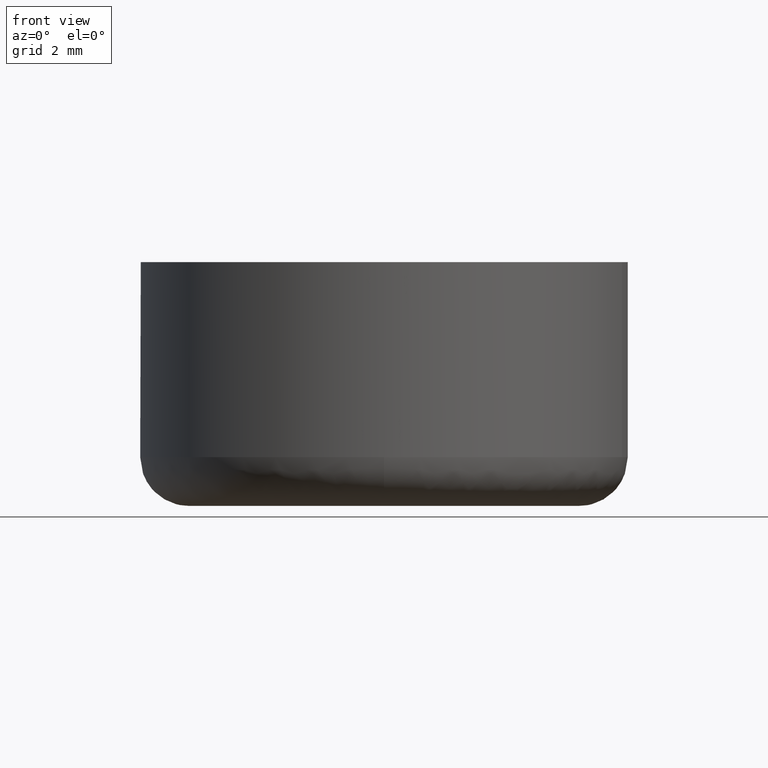
[diagram: clean part render]
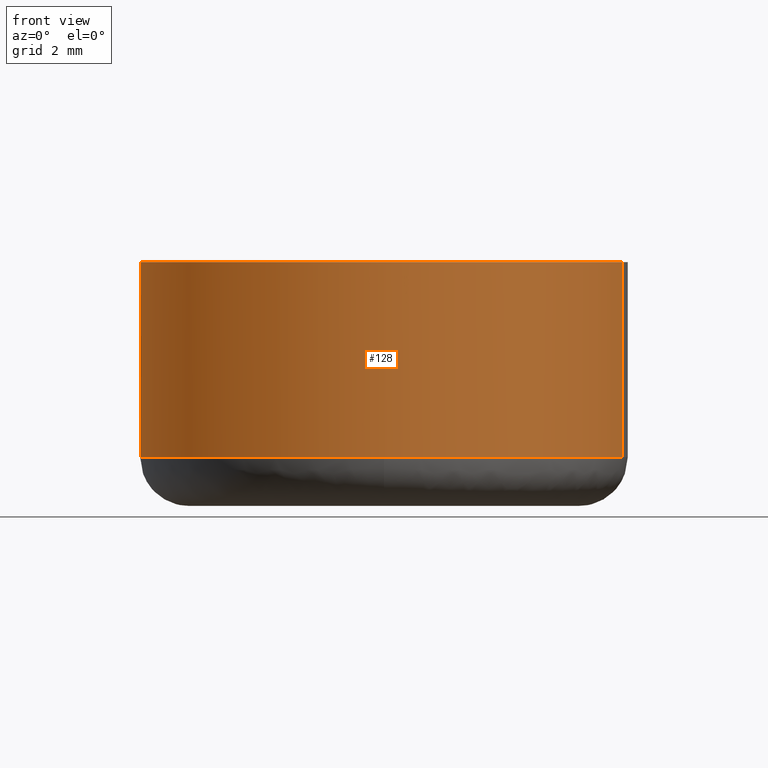
[diagram: same view with one face highlighted and labeled with its STEP entity id]
A machine part, front view. The second image highlights one B-rep face of the part: STEP entity #128.
In plain terms, the highlighted cylindrical surface (partial cylindrical patch) has radius 5 mm, axis along (-0, 0, 1).
Its self-contained STEP definition (entity closure, byte-faithful):
#128=ADVANCED_FACE('',(#299),#298,.T.);
#298=CYLINDRICAL_SURFACE('',#427,5.00000223932E+000);
#299=FACE_OUTER_BOUND('',#428,.T.);
#424=CARTESIAN_POINT('',(-1.82499951851E-006,2.10261817881E-006,5.00000000000E+000));
#425=DIRECTION('',(-3.91191233359E-016,2.85891110639E-016,1.00000000000E+000));
#426=DIRECTION('',(-9.75968852868E-001,2.17910069136E-001,-4.44089010958E-016));
#427=AXIS2_PLACEMENT_3D('',#424,#425,#426);
#428=EDGE_LOOP('',(#572,#573,#574,#575,#576,#577,#578));
#572=ORIENTED_EDGE('',*,*,#637,.T.);
#573=ORIENTED_EDGE('',*,*,#648,.F.);
#574=ORIENTED_EDGE('',*,*,#649,.F.);
#575=ORIENTED_EDGE('',*,*,#650,.F.);
#576=ORIENTED_EDGE('',*,*,#651,.F.);
#577=ORIENTED_EDGE('',*,*,#652,.F.);
#578=ORIENTED_EDGE('',*,*,#653,.T.);
#637=EDGE_CURVE('',#902,#894,#903,.T.);
#648=EDGE_CURVE('',#972,#894,#973,.T.);
#649=EDGE_CURVE('',#979,#972,#980,.T.);
#650=EDGE_CURVE('',#986,#979,#987,.T.);
#651=EDGE_CURVE('',#993,#986,#994,.T.);
#652=EDGE_CURVE('',#1000,#993,#1001,.T.);
#653=EDGE_CURVE('',#1000,#902,#1007,.T.);
#894=VERTEX_POINT('',#1210);
#902=VERTEX_POINT('',#1216);
#903=CIRCLE('',#1220,5.00000000000E+000);
#972=VERTEX_POINT('',#1252);
#973=(BOUNDED_CURVE() B_SPLINE_CURVE(1,(#1253,#1254),.UNSPECIFIED.,.F.,.F.) B_SPLINE_CURVE_WITH_KNOTS((2,2),(8.33333358172E-002,9.16666671238E-001),.UNSPECIFIED.) CURVE() GEOMETRIC_REPRESENTATION_ITEM() RATIONAL_B_SPLINE_CURVE((1.00000000000E+000,1.00000000000E+000)) REPRESENTATION_ITEM('') );
#979=VERTEX_POINT('',#1255);
#980=CIRCLE('',#1259,5.00000000000E+000);
#986=VERTEX_POINT('',#1260);
#987=CIRCLE('',#1264,4.99999999995E+000);
#993=VERTEX_POINT('',#1265);
#994=CIRCLE('',#1269,5.00000000000E+000);
#1000=VERTEX_POINT('',#1270);
#1001=CIRCLE('',#1274,5.00000000000E+000);
#1007=(BOUNDED_CURVE() B_SPLINE_CURVE(1,(#1275,#1276),.UNSPECIFIED.,.F.,.F.) B_SPLINE_CURVE_WITH_KNOTS((2,2),(8.33333334611E-002,9.16666666667E-001),.UNSPECIFIED.) CURVE() GEOMETRIC_REPRESENTATION_ITEM() RATIONAL_B_SPLINE_CURVE((7.50000000000E-001,7.50000000000E-001)) REPRESENTATION_ITEM('') );
#1210=CARTESIAN_POINT('',(-4.87984431308E+000,1.08955012735E+000,5.00000000000E+000));
#1216=CARTESIAN_POINT('',(4.87963473175E+000,-1.09048836980E+000,5.00000000000E+000));
#1217=CARTESIAN_POINT('',(1.60094160151E-012,-2.11741735257E-012,5.00000000000E+000));
#1218=DIRECTION('',(-4.01475910473E-016,-1.67760873158E-016,-1.00000000000E+000));
#1219=DIRECTION('',(1.00000000000E+000,4.23272528138E-013,-4.01475910474E-016));
#1220=AXIS2_PLACEMENT_3D('',#1217,#1218,#1219);
#1252=CARTESIAN_POINT('',(-4.87984390253E+000,1.08955196613E+000,1.00000000000E+000));
#1253=CARTESIAN_POINT('',(-4.87984827485E+000,1.08955293627E+000,1.00000001190E+000));
#1254=CARTESIAN_POINT('',(-4.87984827485E+000,1.08955293627E+000,5.00000002194E+000));
#1255=CARTESIAN_POINT('',(-5.00000000000E+000,0.00000000000E+000,1.00000000000E+000));
#1256=CARTESIAN_POINT('',(5.22692999994E-013,-5.09814412908E-013,9.99999999981E-001));
#1257=DIRECTION('',(-3.85391718538E-012,9.68161009465E-028,-1.00000000000E+000));
#1258=DIRECTION('',(1.00000000000E+000,-1.01962882582E-013,-3.85391718538E-012));
#1259=AXIS2_PLACEMENT_3D('',#1256,#1257,#1258);
#1260=CARTESIAN_POINT('',(-4.99842094642E+000,-1.25650477218E-001,9.99999999981E-001));
#1261=CARTESIAN_POINT('',(-5.14672748864E-011,-6.13148420925E-013,9.99999940501E-001));
#1262=DIRECTION('',(-1.18998908855E-008,6.36637710442E-015,-1.00000000000E+000));
#1263=DIRECTION('',(9.99684189283E-001,2.51300954437E-002,-1.18961326124E-008));
#1264=AXIS2_PLACEMENT_3D('',#1261,#1262,#1263);
#1265=CARTESIAN_POINT('',(-2.12371853669E-011,-5.00000000000E+000,1.00000000000E+000));
#1266=CARTESIAN_POINT('',(1.64090963040E-012,-2.16937579012E-012,1.00000000000E+000));
#1267=DIRECTION('',(-1.75415275237E-015,-1.84450748510E-015,-1.00000000000E+000));
#1268=DIRECTION('',(-9.75968999961E-001,2.17909410342E-001,1.31006316906E-015));
#1269=AXIS2_PLACEMENT_3D('',#1266,#1267,#1268);
#1270=CARTESIAN_POINT('',(4.87964653504E+000,-1.09043555201E+000,1.00000000000E+000));
#1271=CARTESIAN_POINT('',(1.64090963040E-012,-2.16937579012E-012,1.00000000000E+000));
#1272=DIRECTION('',(-1.75415275237E-015,-1.84450748510E-015,-1.00000000000E+000));
#1273=DIRECTION('',(-9.75968999961E-001,2.17909410342E-001,1.31006316906E-015));
#1274=AXIS2_PLACEMENT_3D('',#1271,#1272,#1273);
#1275=CARTESIAN_POINT('',(4.87984462485E+000,-1.08954873103E+000,1.00000000059E+000));
#1276=CARTESIAN_POINT('',(4.87984462485E+000,-1.08954873103E+000,5.00000000000E+000));